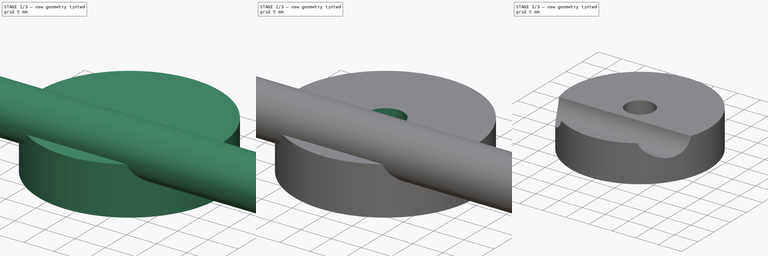
[diagram: build sequence overview — one tinted view per stage of 3, left to right]
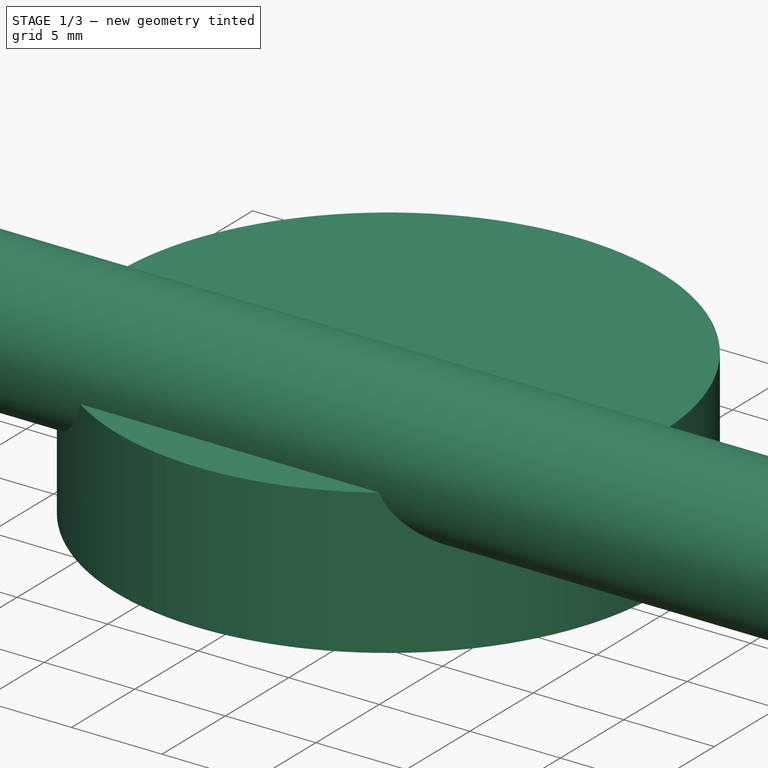
[diagram: stage 1 of 3 — iso view after this stage's code; geometry added in this stage tinted green]
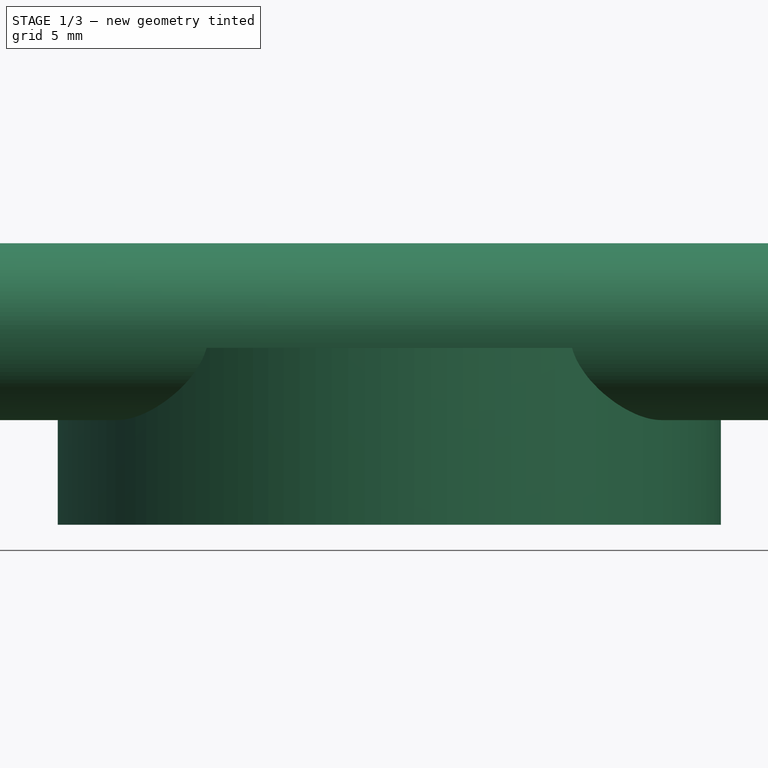
[diagram: stage 1 of 3 — front view after this stage's code; geometry added in this stage tinted green]
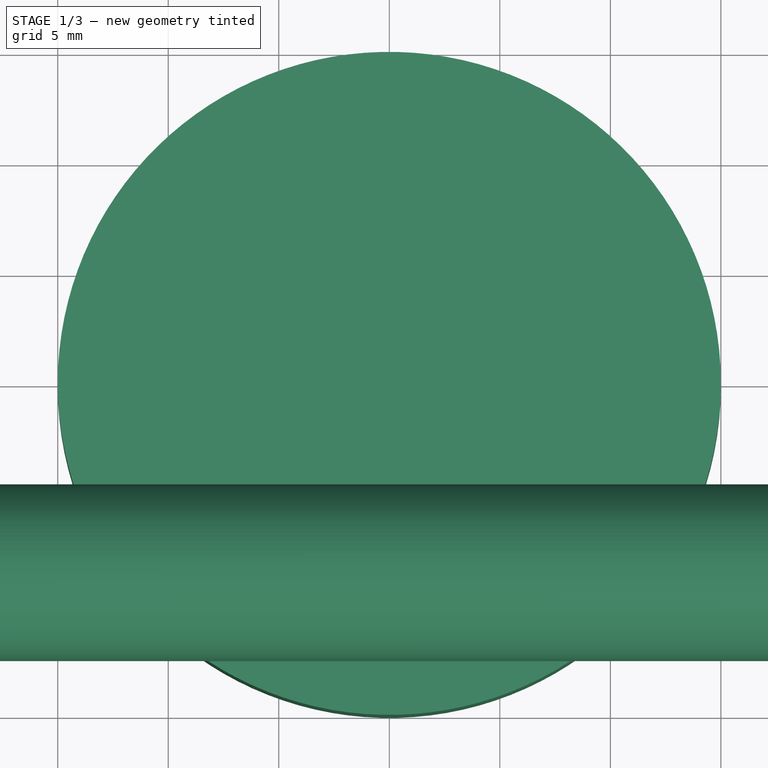
[diagram: stage 1 of 3 — top view after this stage's code; geometry added in this stage tinted green]
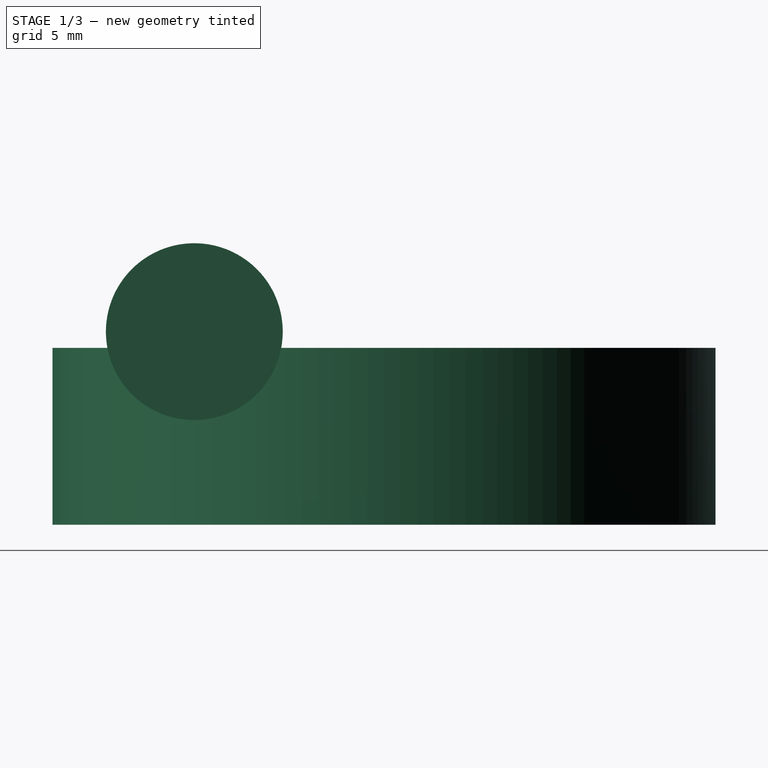
[diagram: stage 1 of 3 — right view after this stage's code; geometry added in this stage tinted green]
FCSTD DOCUMENT  (FreeCAD 0.16R6712 (Git))
Label: шайба
License: All rights reserved
LicenseURL: http://en.wikipedia.org/wiki/All_rights_reserved
objects: Part::Cylinder×2, Sketcher::SketchObject×2, PartDesign::Pocket×2, Part::Cut×1, App::DocumentObjectGroup×1
note: 9 computed .brp shape members not serialized (recipe doc carries the construction recipe); baked Part::Feature solids carry a one-line shape summary decoded from their .brp

FEATURE [Part::Cylinder] Cylinder  label="Цилиндр"
  Angle = 360
  Height = 8
  Radius = 15
FEATURE [Part::Cylinder] Cylinder001  label="Цилиндр001"
  Angle = 360
  Height = 70
  Placement = pos=(-35.24,-8.5813,8.7367) rot=(0,1,0;1.5708rad)
  Radius = 4
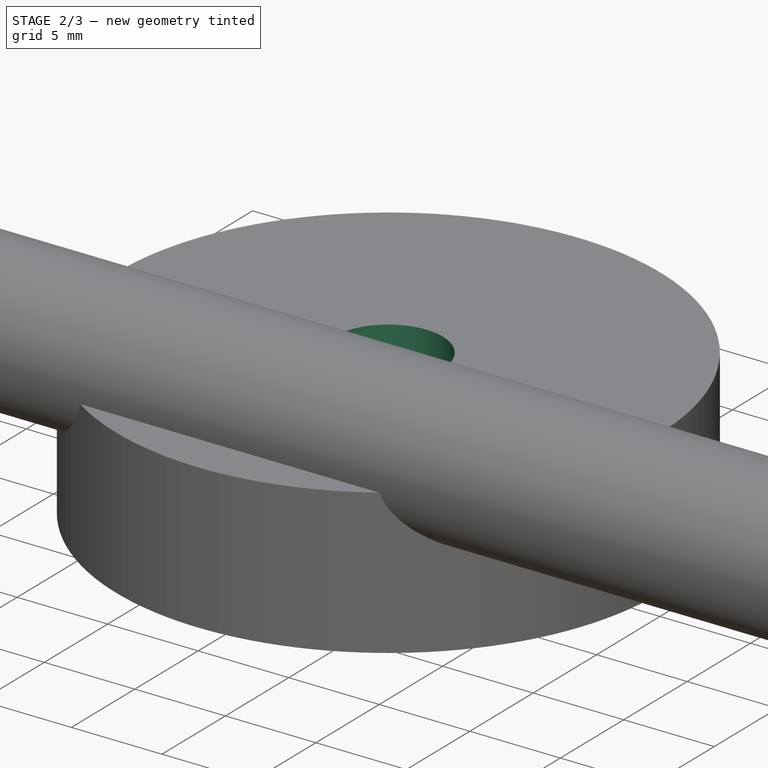
[diagram: stage 2 of 3 — iso view after this stage's code; geometry added in this stage tinted green]
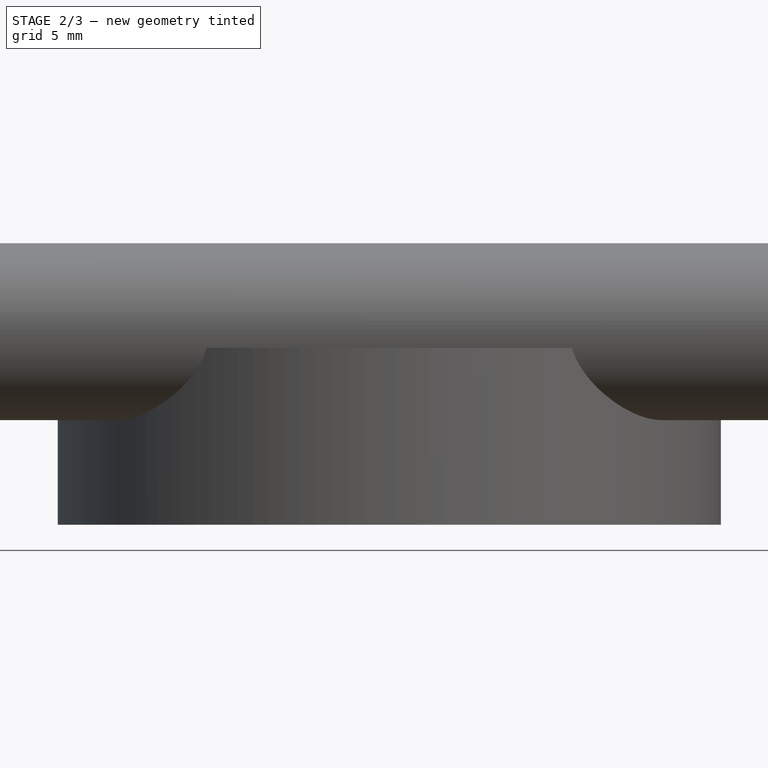
[diagram: stage 2 of 3 — front view after this stage's code; geometry added in this stage tinted green]
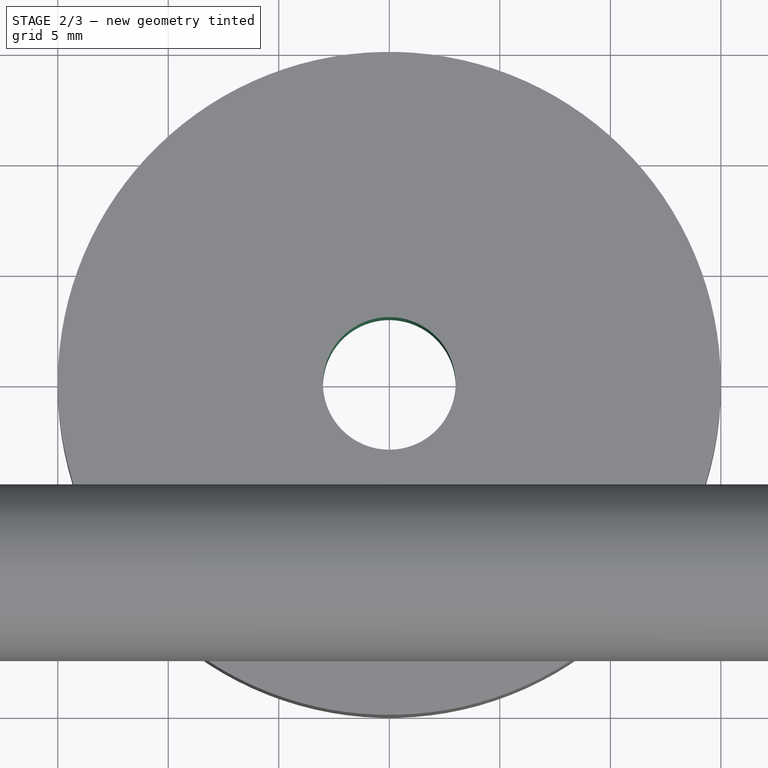
[diagram: stage 2 of 3 — top view after this stage's code; geometry added in this stage tinted green]
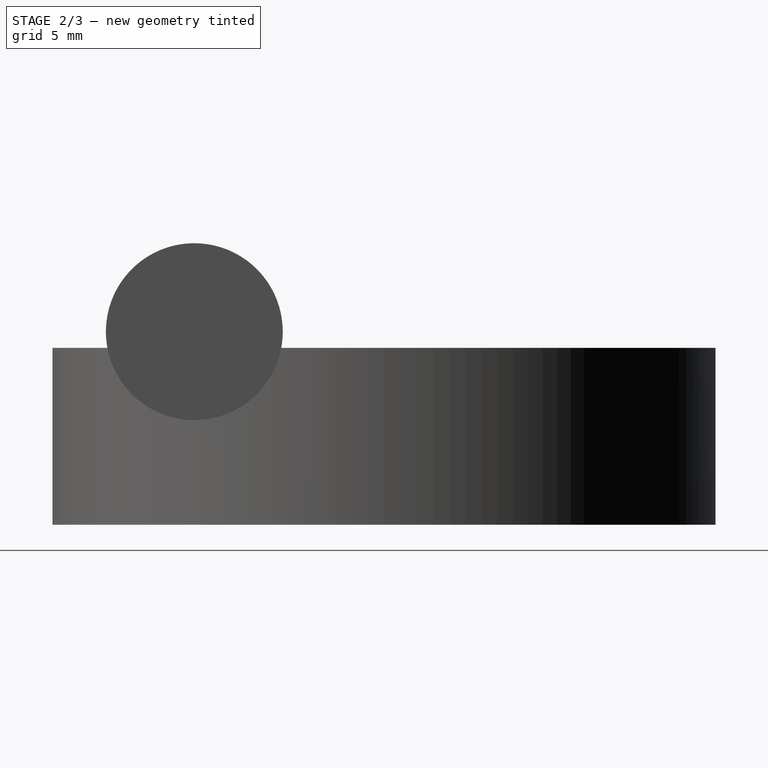
[diagram: stage 2 of 3 — right view after this stage's code; geometry added in this stage tinted green]
FEATURE [Sketcher::SketchObject] Sketch  label="Central"
  Placement = pos=(0,0,8) rot=(0,0,1;0rad)
  Support = -> Cylinder [Face2]
  sketch-geometry (1):
    g0: Circle CenterX=0 CenterY=0 CenterZ=0 NormalX=0 NormalY=0 NormalZ=1 Radius=3
  constraints (2):
    c: Coincident(g0,g-1)
    c: Radius(g0) = 3
FEATURE [PartDesign::Pocket] Pocket
  Length = 5
  Sketch = -> Sketch
  Type = 1
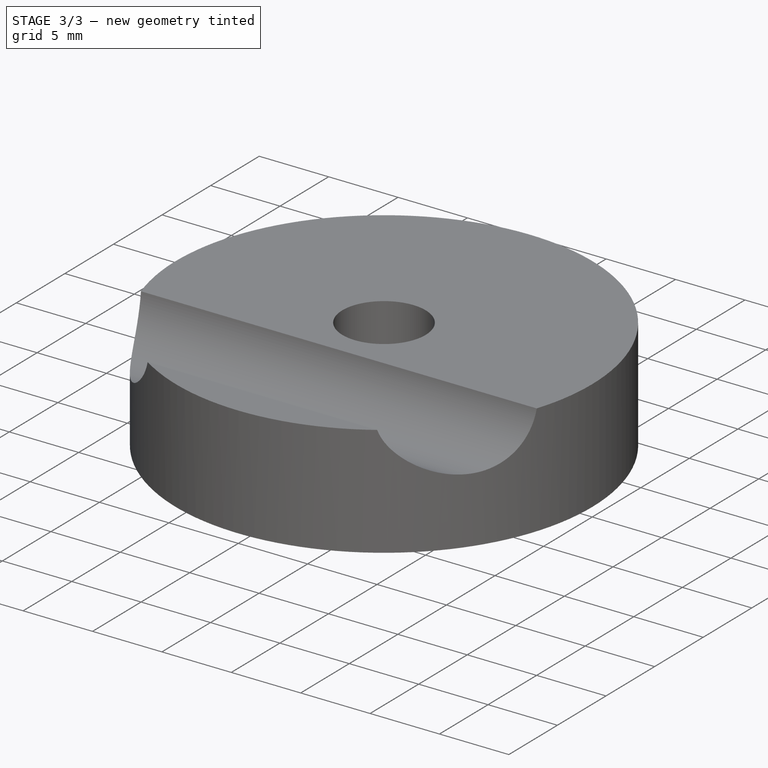
[diagram: stage 3 of 3 — iso view after this stage's code; geometry added in this stage tinted green]
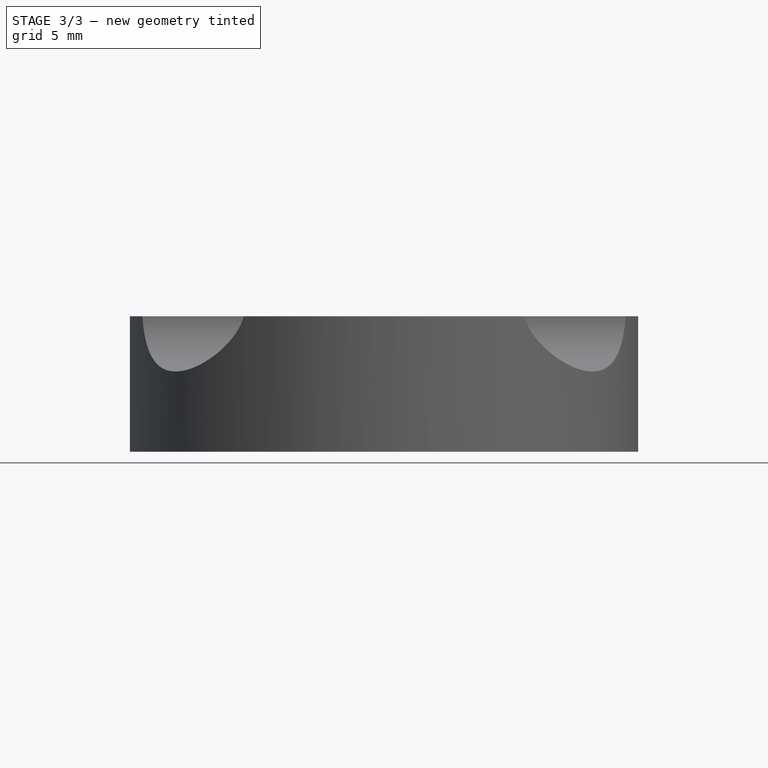
[diagram: stage 3 of 3 — front view after this stage's code; geometry added in this stage tinted green]
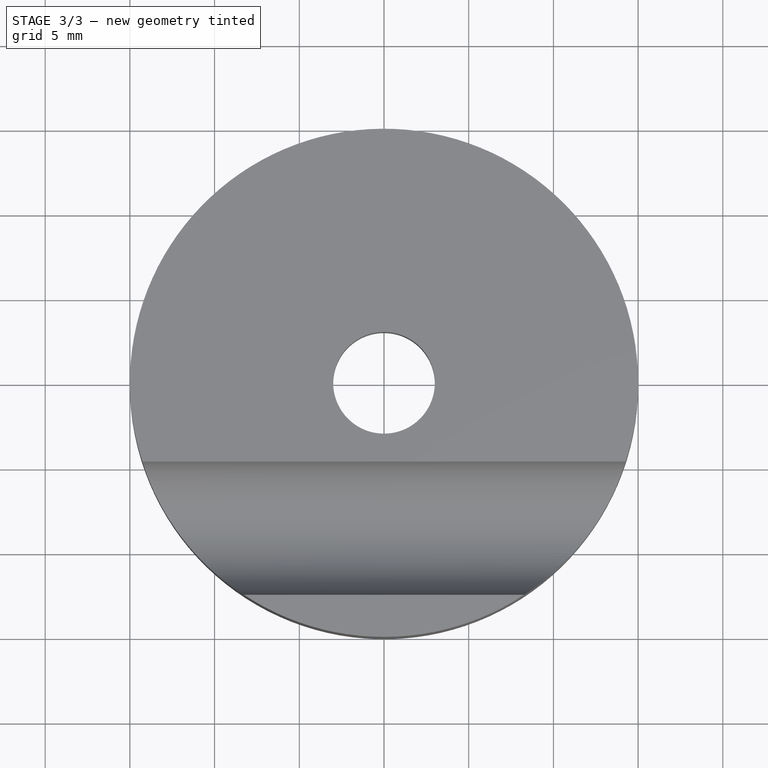
[diagram: stage 3 of 3 — top view after this stage's code; geometry added in this stage tinted green]
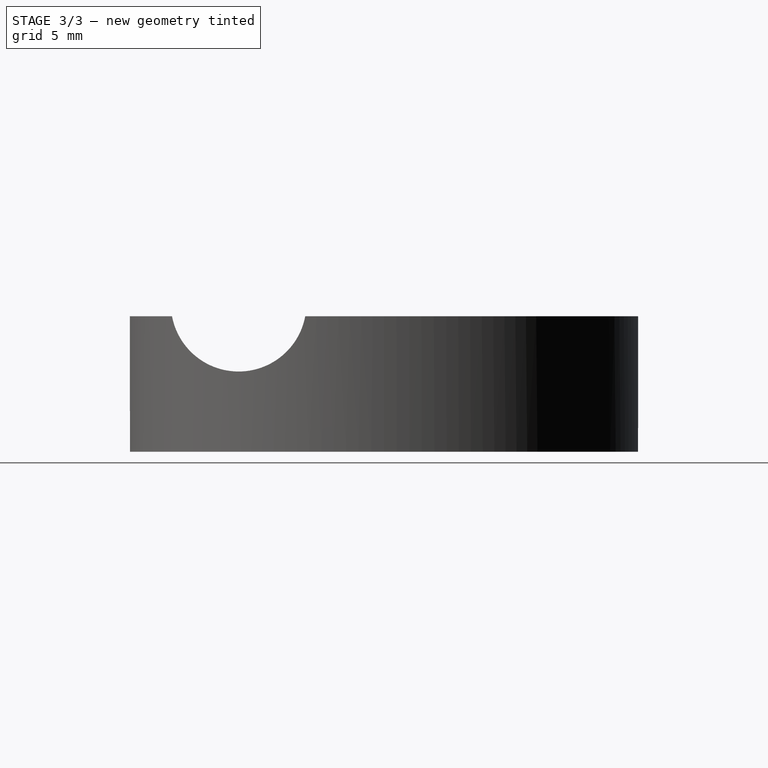
[diagram: stage 3 of 3 — right view after this stage's code; geometry added in this stage tinted green]
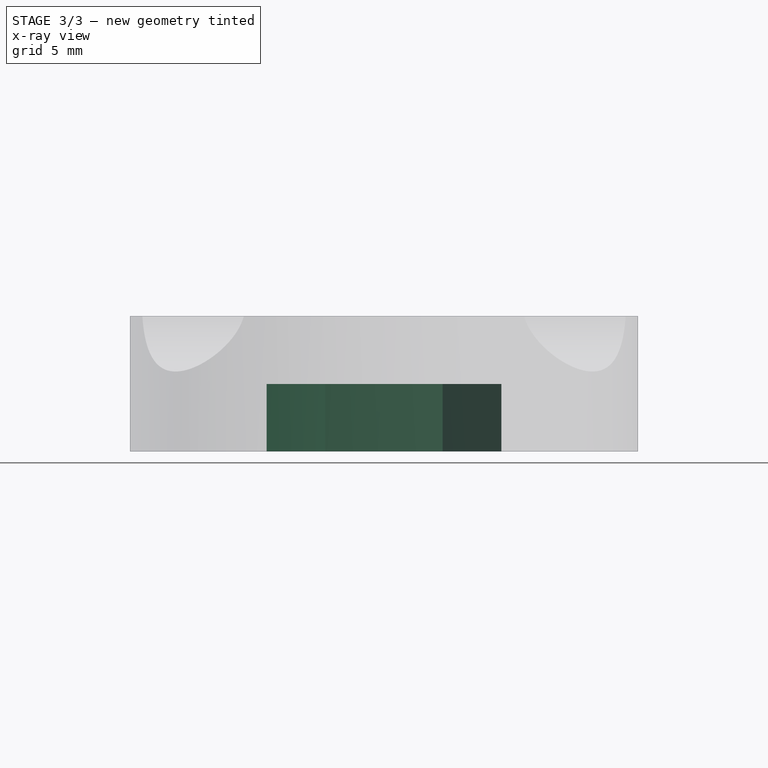
[diagram: stage 3 of 3 — x-ray composite at the front view; earlier geometry ghosted, this stage's added geometry solid]
FEATURE [Part::Cut] Cut
  Base = -> Pocket
  Tool = -> Cylinder001
FEATURE [App::DocumentObjectGroup] ____________  label="Sketches"
  Group = -> [Cut]
FEATURE [Sketcher::SketchObject] Sketch001
  Placement = pos=(0,0,0) rot=(1,0,0;3.14159rad)
  Support = -> Cut [Face2]
  sketch-geometry (7):
    g0: LineSegment StartX=3.4641 StartY=-6 StartZ=0 EndX=6.9282 EndY=0 EndZ=0
    g1: LineSegment StartX=6.9282 StartY=0 StartZ=0 EndX=3.4641 EndY=6 EndZ=0
    g2: LineSegment StartX=3.4641 StartY=6 StartZ=0 EndX=-3.4641 EndY=6 EndZ=0
    g3: LineSegment StartX=-3.4641 StartY=6 StartZ=0 EndX=-6.9282 EndY=0 EndZ=0
    g4: LineSegment StartX=-6.9282 StartY=0 StartZ=0 EndX=-3.4641 EndY=-6 EndZ=0
    g5: LineSegment StartX=-3.4641 StartY=-6 StartZ=0 EndX=3.4641 EndY=-6 EndZ=0
    g6: Circle [constr] CenterX=0 CenterY=0 CenterZ=0 NormalX=0 NormalY=0 NormalZ=1 Radius=6.9282
  constraints (16):
    c: Coincident(g0,g1)
    c: Coincident(g1,g2)
    c: Coincident(g2,g3)
    c: Coincident(g3,g4)
    c: Coincident(g4,g5)
    c: Coincident(g5,g0)
    c: Equal(g0, g1-g5) x5
    c: PointOnObject(g0,g6)
    c: PointOnObject(g1,g6)
    c: PointOnObject(g2,g6)
    c: PointOnObject(g3,g6)
    c: PointOnObject(g4,g6)
    c: PointOnObject(g5,g6)
    c: Coincident(g6,g-1)
    c: Horizontal(g5)
    c: DistanceY(g4,g2) = 12
FEATURE [PartDesign::Pocket] Pocket001
  Length = 4
  Sketch = -> Sketch001
  Type = 0
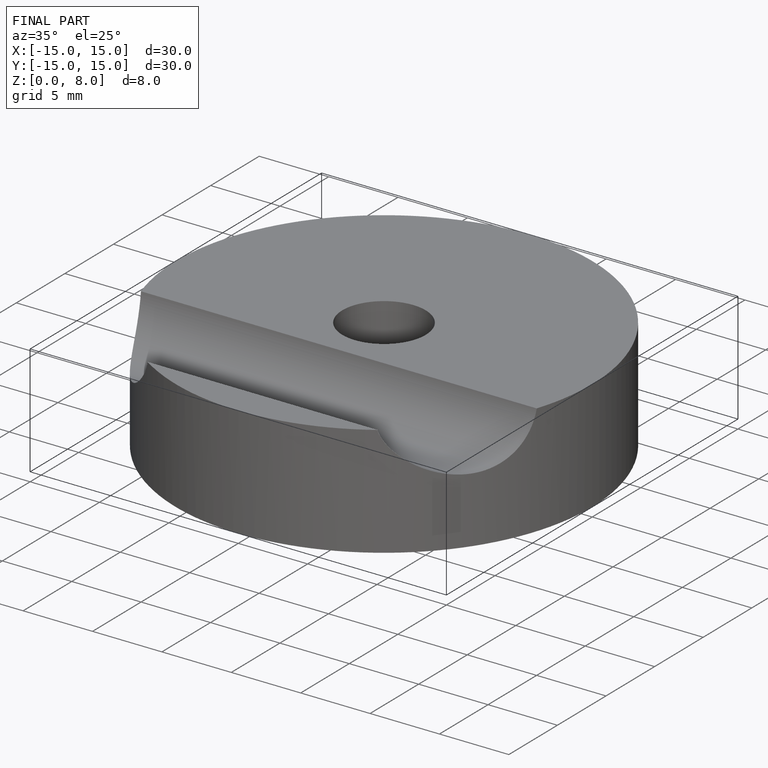
[diagram: finished part — iso view with bounding-box wireframe]
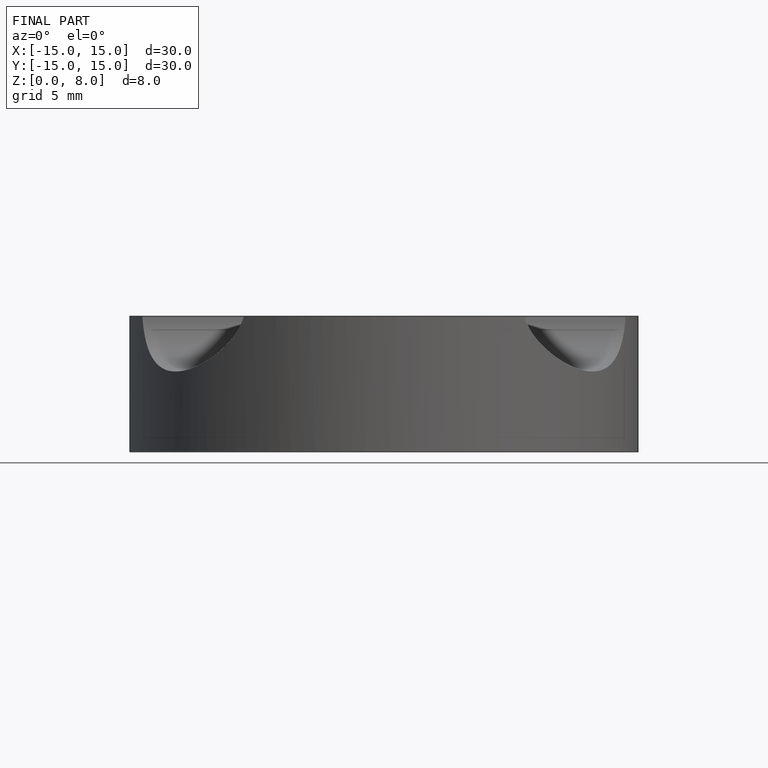
[diagram: finished part — front view with bounding-box wireframe]
